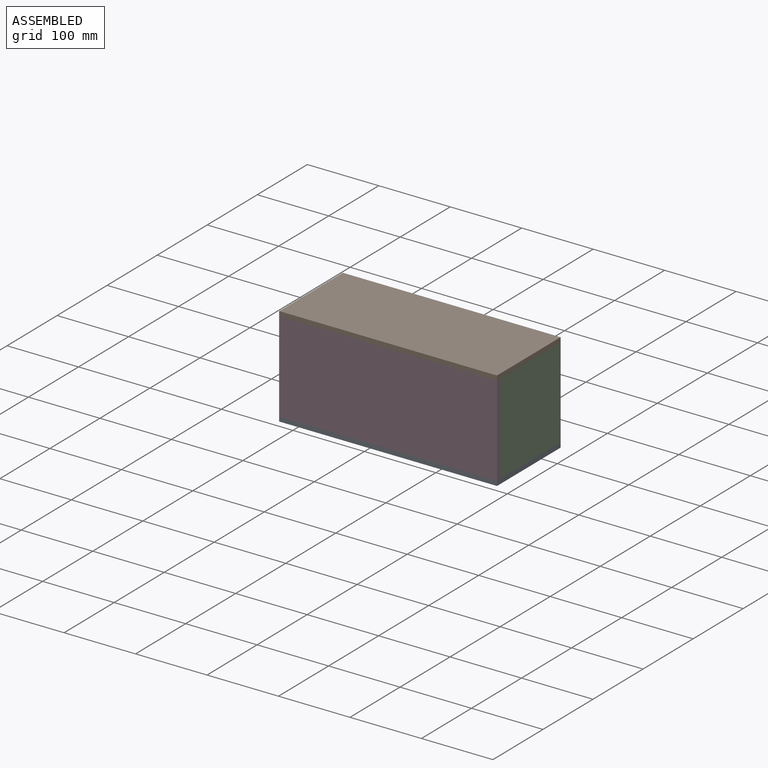
[diagram: assembled view]
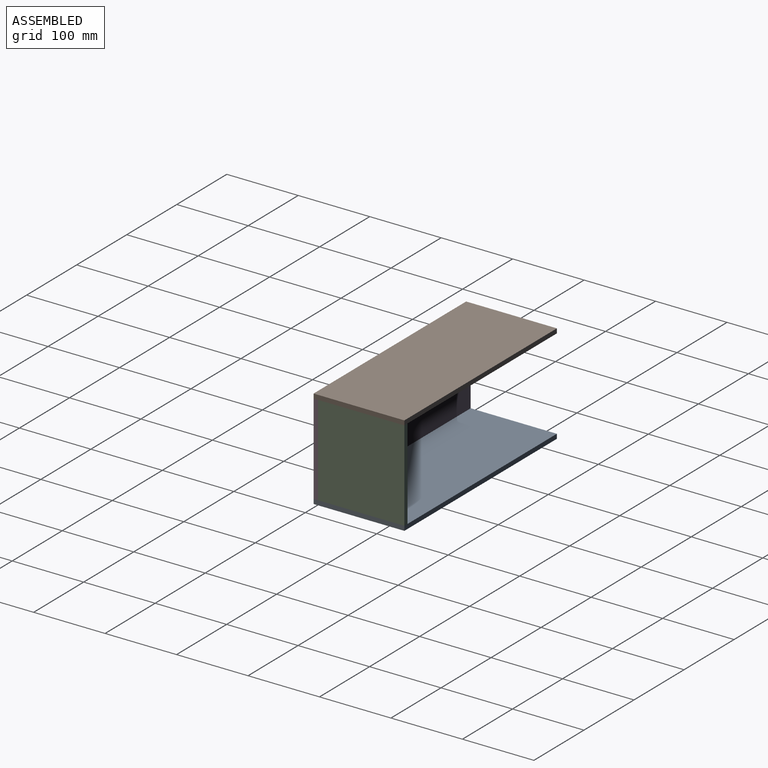
[diagram: assembled view, second angle]
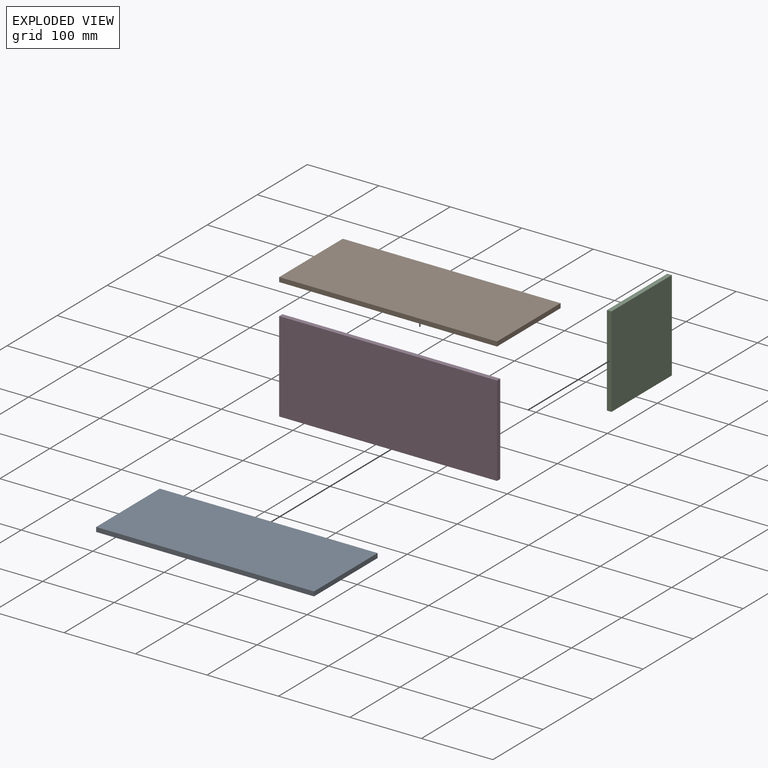
[diagram: exploded view]
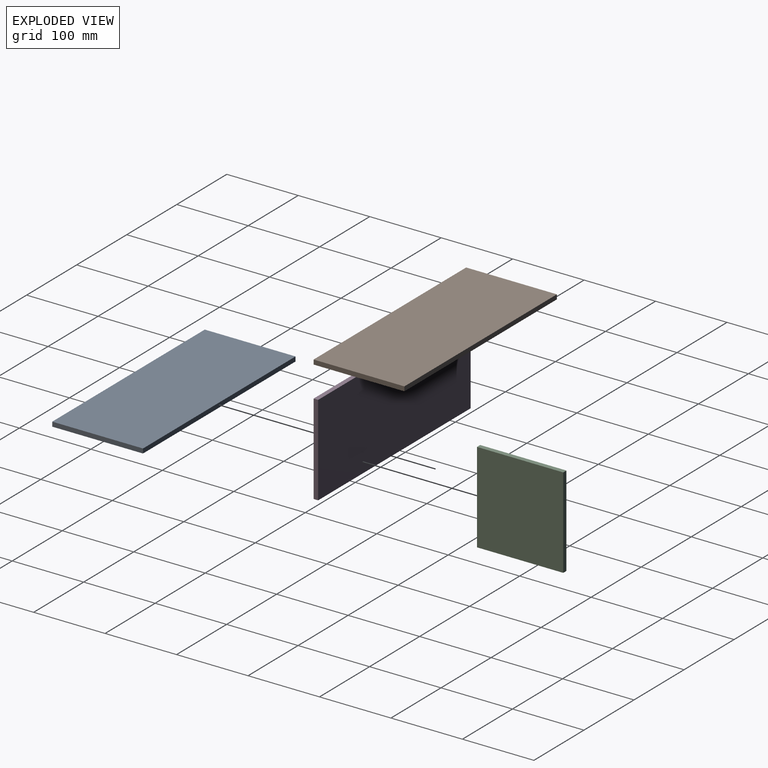
[diagram: exploded view, second angle]
ASSEMBLY  parts=4 mates=9
PART A: 6 faces, bbox 304.8x127x6.4 mm
  f0: plane 304.8x6.35mm, normal (0,1,0), area 1935.5mm2, adj f1,f3,f4,f5
  f1: plane 127x6.35mm, normal (-1,0,0), area 806.5mm2, adj f0,f2,f4,f5
  f2: plane 304.8x6.35mm, normal (0,-1,0), area 1935.5mm2, adj f1,f3,f4,f5
  f3: plane 127x6.35mm, normal (1,0,0), area 806.5mm2, adj f0,f2,f4,f5
  f4: plane 304.8x127mm, normal (0,0,1), area 38709.6mm2, adj f0,f1,f2,f3
  f5: plane 304.8x127mm, normal (0,0,-1), area 38709.6mm2, adj f0,f1,f2,f3
PART B: 6 faces, bbox 304.8x127x6.4 mm
  f0: plane 304.8x6.35mm, normal (0,1,0), area 1935.5mm2, adj f1,f3,f4,f5
  f1: plane 127x6.35mm, normal (-1,0,0), area 806.5mm2, adj f0,f2,f4,f5
  f2: plane 304.8x6.35mm, normal (0,-1,0), area 1935.5mm2, adj f1,f3,f4,f5
  f3: plane 127x6.35mm, normal (1,0,0), area 806.5mm2, adj f0,f2,f4,f5
  f4: plane 304.8x127mm, normal (0,0,1), area 38709.6mm2, adj f0,f1,f2,f3
  f5: plane 304.8x127mm, normal (0,0,-1), area 38709.6mm2, adj f0,f1,f2,f3
PART C: 6 faces, bbox 6.4x120.7x127 mm
  f0: plane 120.65x6.35mm, normal (0,0,1), area 766.1mm2, adj f2,f3,f4,f5
  f1: plane 120.65x6.35mm, normal (0,0,-1), area 766.1mm2, adj f2,f3,f4,f5
  f2: plane 127x120.65mm, normal (1,0,0), area 15322.6mm2, adj f0,f1,f4,f5
  f3: plane 127x120.65mm, normal (-1,0,0), area 15322.6mm2, adj f0,f1,f4,f5
  f4: plane 127x6.35mm, normal (0,1,0), area 806.5mm2, adj f0,f1,f2,f3
  f5: plane 127x6.35mm, normal (0,-1,0), area 806.5mm2, adj f0,f1,f2,f3
PART D: 6 faces, bbox 304.8x6.4x127 mm
  f0: plane 304.8x6.35mm, normal (0,0,1), area 1935.5mm2, adj f1,f3,f4,f5
  f1: plane 127x6.35mm, normal (-1,0,0), area 806.5mm2, adj f0,f2,f4,f5
  f2: plane 304.8x6.35mm, normal (0,0,-1), area 1935.5mm2, adj f1,f3,f4,f5
  f3: plane 127x6.35mm, normal (1,0,0), area 806.5mm2, adj f0,f2,f4,f5
  f4: plane 304.8x127mm, normal (0,-1,0), area 38709.6mm2, adj f0,f1,f2,f3
  f5: plane 304.8x127mm, normal (0,1,0), area 38709.6mm2, adj f0,f1,f2,f3
PLACE A t=(27.7,1.11,-80.58)mm
PLACE B t=(226.79,36.86,52.77)mm
PLACE C t=(178.52,25.5,-104.2)mm
PLACE D t=(-3.82,7.46,-61.06)mm
MATE planar C.f4 <-> A.f0  axis (0,1,0) through (181.7,128.11,-10.73)mm
MATE planar B.f2 <-> D.f4  axis (0,-1,0) through (32.47,1.11,55.94)mm
MATE planar D.f4 <-> A.f2  axis (0,-1,0) through (32.47,1.11,-10.73)mm
MATE planar D.f3 <-> A.f3  axis (1,0,0) through (184.87,4.29,-10.73)mm
MATE planar B.f5 <-> C.f0  axis (0,0,-1) through (32.47,64.61,52.77)mm
MATE planar C.f1 <-> A.f4  axis (0,0,-1) through (181.7,67.79,-74.23)mm
MATE planar C.f2 <-> A.f3  axis (1,0,0) through (184.87,67.79,-10.73)mm
MATE planar A.f4 <-> D.f2  axis (0,0,1) through (32.47,64.61,-74.23)mm
MATE planar B.f3 <-> C.f2  axis (1,0,0) through (184.87,64.61,55.94)mm
